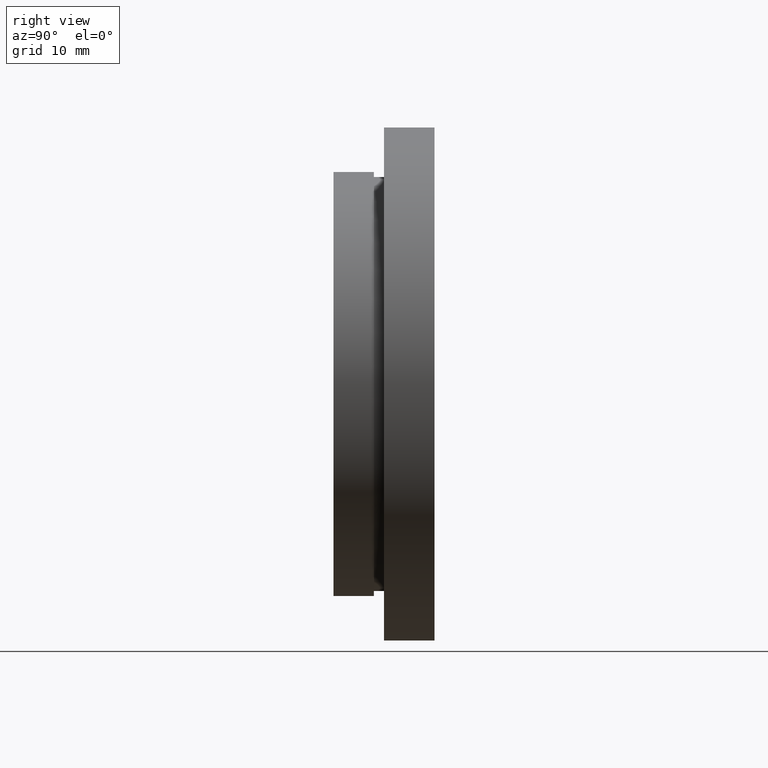
[diagram: clean part render]
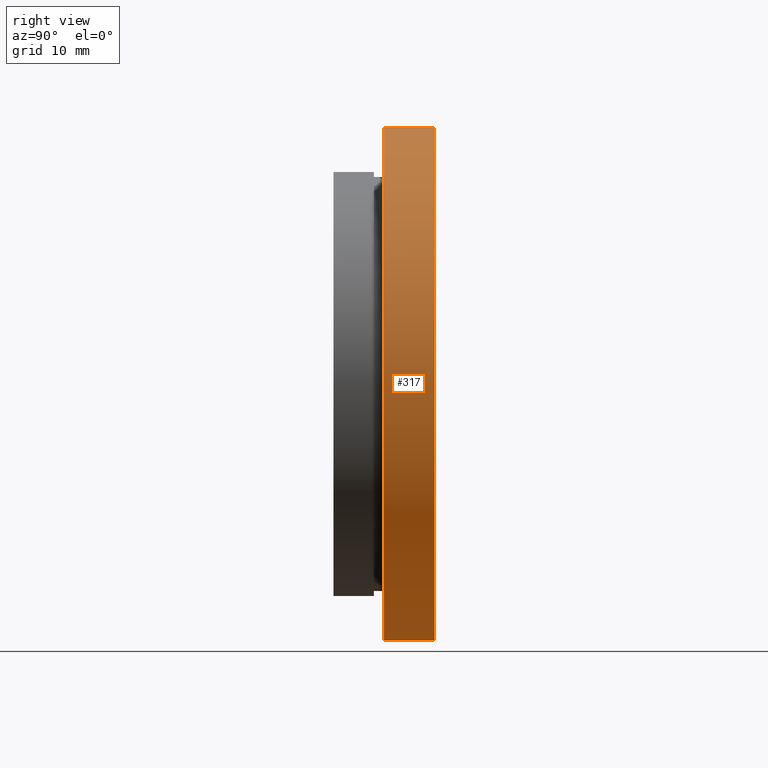
[diagram: same view with one face highlighted and labeled with its STEP entity id]
A machine part, right view. The second image highlights one B-rep face of the part: STEP entity #317.
In plain terms, the highlighted cylindrical surface (partial cylindrical patch) has radius 25.4 mm, axis along (-0, 1, -0).
Its self-contained STEP definition (entity closure, byte-faithful):
#37 = CIRCLE ( 'NONE', #610, 25.39999999999999900 ) ;
#53 = VECTOR ( 'NONE', #343, 1000.000000000000000 ) ;
#125 = AXIS2_PLACEMENT_3D ( 'NONE', #369, #397, #353 ) ;
#127 = FACE_OUTER_BOUND ( 'NONE', #599, .T. ) ;
#133 = CYLINDRICAL_SURFACE ( 'NONE', #125, 25.39999999999999900 ) ;
#141 = CARTESIAN_POINT ( 'NONE',  ( 0.0000000000000000000, 5.000000000000000900, 0.0000000000000000000 ) ) ;
#146 = CARTESIAN_POINT ( 'NONE',  ( 3.110602869834276900E-015, 9.999999999999998200, -25.39999999999999900 ) ) ;
#149 = CARTESIAN_POINT ( 'NONE',  ( 0.0000000000000000000, 9.999999999999998200, 0.0000000000000000000 ) ) ;
#163 = VERTEX_POINT ( 'NONE', #263 ) ;
#167 = EDGE_CURVE ( 'NONE', #315, #163, #492, .T. ) ;
#178 = DIRECTION ( 'NONE',  ( 0.0000000000000000000, 0.0000000000000000000, 1.000000000000000000 ) ) ;
#180 = VERTEX_POINT ( 'NONE', #146 ) ;
#195 = DIRECTION ( 'NONE',  ( 0.0000000000000000000, 0.0000000000000000000, 1.000000000000000000 ) ) ;
#196 = VECTOR ( 'NONE', #214, 1000.000000000000000 ) ;
#201 = LINE ( 'NONE', #464, #196 ) ;
#214 = DIRECTION ( 'NONE',  ( -0.0000000000000000000, 1.000000000000000000, -0.0000000000000000000 ) ) ;
#227 = ORIENTED_EDGE ( 'NONE', *, *, #167, .F. ) ;
#263 = CARTESIAN_POINT ( 'NONE',  ( 0.0000000000000000000, 9.999999999999998200, 25.39999999999999900 ) ) ;
#274 = ORIENTED_EDGE ( 'NONE', *, *, #533, .T. ) ;
#275 = VERTEX_POINT ( 'NONE', #465 ) ;
#277 = EDGE_CURVE ( 'NONE', #163, #180, #37, .T. ) ;
#315 = VERTEX_POINT ( 'NONE', #406 ) ;
#317 = ADVANCED_FACE ( 'NONE', ( #127 ), #133, .T. ) ;
#343 = DIRECTION ( 'NONE',  ( -0.0000000000000000000, 1.000000000000000000, -0.0000000000000000000 ) ) ;
#353 = DIRECTION ( 'NONE',  ( 0.0000000000000000000, 0.0000000000000000000, 1.000000000000000000 ) ) ;
#355 = CIRCLE ( 'NONE', #591, 25.39999999999999900 ) ;
#369 = CARTESIAN_POINT ( 'NONE',  ( 0.0000000000000000000, 13.74468085106383300, 0.0000000000000000000 ) ) ;
#397 = DIRECTION ( 'NONE',  ( -0.0000000000000000000, 1.000000000000000000, -0.0000000000000000000 ) ) ;
#406 = CARTESIAN_POINT ( 'NONE',  ( 0.0000000000000000000, 5.000000000000000900, 25.39999999999999900 ) ) ;
#444 = ORIENTED_EDGE ( 'NONE', *, *, #277, .F. ) ;
#464 = CARTESIAN_POINT ( 'NONE',  ( 3.110602869834276900E-015, 13.74468085106383300, -25.39999999999999900 ) ) ;
#465 = CARTESIAN_POINT ( 'NONE',  ( 3.110602869834276900E-015, 5.000000000000000900, -25.39999999999999900 ) ) ;
#477 = DIRECTION ( 'NONE',  ( -0.0000000000000000000, 1.000000000000000000, -0.0000000000000000000 ) ) ;
#492 = LINE ( 'NONE', #513, #53 ) ;
#513 = CARTESIAN_POINT ( 'NONE',  ( 0.0000000000000000000, 13.74468085106383300, 25.39999999999999900 ) ) ;
#518 = DIRECTION ( 'NONE',  ( -0.0000000000000000000, 1.000000000000000000, -0.0000000000000000000 ) ) ;
#533 = EDGE_CURVE ( 'NONE', #315, #275, #355, .T. ) ;
#591 = AXIS2_PLACEMENT_3D ( 'NONE', #141, #518, #178 ) ;
#599 = EDGE_LOOP ( 'NONE', ( #274, #602, #444, #227 ) ) ;
#602 = ORIENTED_EDGE ( 'NONE', *, *, #608, .T. ) ;
#608 = EDGE_CURVE ( 'NONE', #275, #180, #201, .T. ) ;
#610 = AXIS2_PLACEMENT_3D ( 'NONE', #149, #477, #195 ) ;